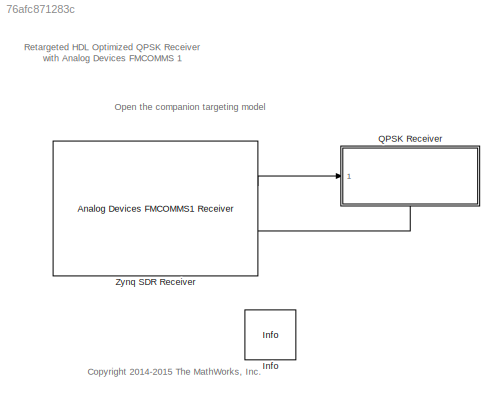
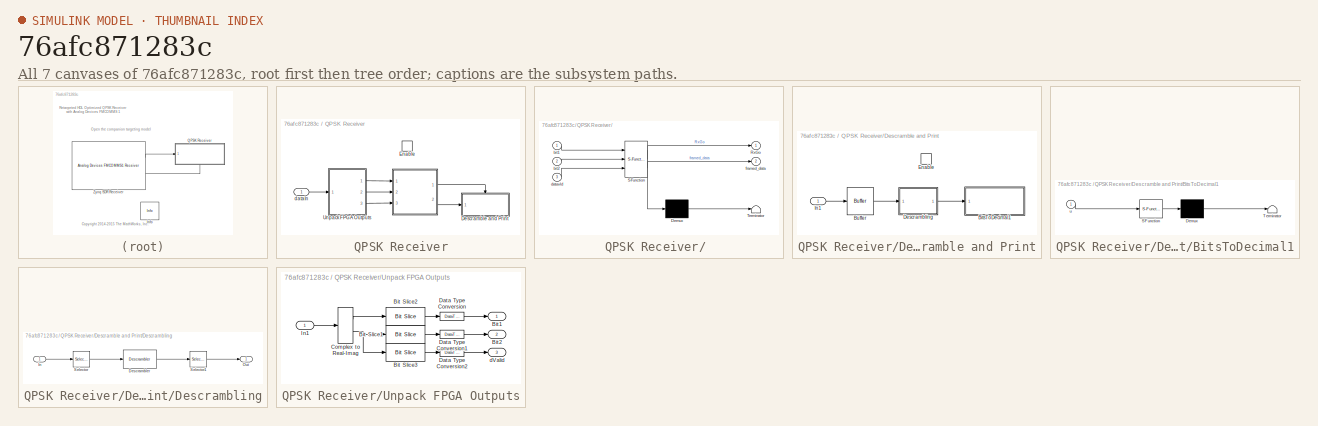
[diagram: thumbnail index - all 7 canvases of the model, root first then tree order]
MODEL slx_76afc871283c
KIND model
CONFIG AbsTol = auto
CONFIG FixedStep = auto
CONFIG InitFcn = sdrzQPSKRxFPGAretarget_params = sdrzQPSKRxFPGA_init;
CONFIG MaxStep = auto
CONFIG MinStep = auto
CONFIG PreLoadFcn = sdrzQPSKRxFPGAretarget_params = sdrzQPSKRxFPGA_init;
CONFIG RelTol = 1e-3
CONFIG SampleTimeConstraint = Unconstrained
CONFIG Solver = FixedStepDiscrete
CONFIG SolverMode = SingleTasking
CONFIG SolverName = FixedStepDiscrete
CONFIG StartTime = 0.0
CONFIG StopTime = inf
BLOCK [Reference] Info  REF=sdrzblksprivate/Info
  Ports = []
  SourceBlock = sdrzblksprivate/Info
  SourceType = Info
BLOCK [SubSystem] QPSK Receiver
  Ports = [1, 0, 1]
  RequestExecContextInheritance = off
  Variant = off
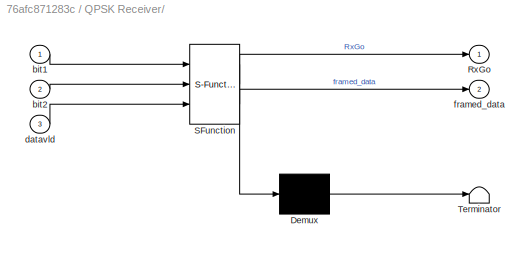
BLOCK [SubSystem] QPSK Receiver/ 
  ErrorFcn = Stateflow.Translate.translate
  PermitHierarchicalResolution = ExplicitOnly
  Ports = [3, 2]
  RequestExecContextInheritance = off
  SFBlockType = MATLAB Function
  TreatAsAtomicUnit = on
  Variant = off
BLOCK [Demux] QPSK Receiver/ / Demux 
  Outputs = 1
  Ports = [1, 1]
BLOCK [S-Function] QPSK Receiver/ / SFunction 
  EnableBusSupport = off
  FunctionName = sf_sfun
  PortCounts = [3 3]
  Ports = [3, 3]
  SFunctionDeploymentMode = off
  Tag = Stateflow S-Function sdrzQPSKRxFPGAretarget 1
BLOCK [Terminator] QPSK Receiver/ / Terminator 
BLOCK [Outport] QPSK Receiver/ /RxGo
  IconDisplay = Port number
BLOCK [Inport] QPSK Receiver/ /bit1
  IconDisplay = Port number
BLOCK [Inport] QPSK Receiver/ /bit2
  IconDisplay = Port number
  Port = 2
BLOCK [Inport] QPSK Receiver/ /datavld
  IconDisplay = Port number
  Port = 3
BLOCK [Outport] QPSK Receiver/ /framed_data
  IconDisplay = Port number
  Port = 2
BLOCK [SubSystem] QPSK Receiver/Descramble and Print
  Ports = [1, 0, 1]
  RequestExecContextInheritance = off
  TreatAsAtomicUnit = on
  Variant = off
BLOCK [SubSystem] QPSK Receiver/Descramble and Print/BitsToDecimal1
  ErrorFcn = Stateflow.Translate.translate
  PermitHierarchicalResolution = ExplicitOnly
  Ports = [1]
  RequestExecContextInheritance = off
  SFBlockType = MATLAB Function
  TreatAsAtomicUnit = on
  Variant = off
BLOCK [Demux] QPSK Receiver/Descramble and Print/BitsToDecimal1/ Demux 
  Outputs = 1
  Ports = [1, 1]
BLOCK [S-Function] QPSK Receiver/Descramble and Print/BitsToDecimal1/ SFunction 
  EnableBusSupport = off
  FunctionName = sf_sfun
  PortCounts = [1 1]
  Ports = [1, 1]
  SFunctionDeploymentMode = off
  Tag = Stateflow S-Function sdrzQPSKRxFPGAretarget 2
BLOCK [Terminator] QPSK Receiver/Descramble and Print/BitsToDecimal1/ Terminator 
BLOCK [Inport] QPSK Receiver/Descramble and Print/BitsToDecimal1/u
  IconDisplay = Port number
BLOCK [Buffer] QPSK Receiver/Descramble and Print/Buffer
  N = 200
  OutputFrames = off
  TreatMby1Signals = One channel
BLOCK [SubSystem] QPSK Receiver/Descramble and Print/Descrambling
  Ports = [1, 1]
  RequestExecContextInheritance = off
  Variant = off
BLOCK [Reference] QPSK Receiver/Descramble and Print/Descrambling/Descrambler  REF=commsequence2/Descrambler
  Ports = [1, 1]
  SourceBlock = commsequence2/Descrambler
  SourceType = Descrambler
BLOCK [Inport] QPSK Receiver/Descramble and Print/Descrambling/In
  IconDisplay = Port number
BLOCK [Outport] QPSK Receiver/Descramble and Print/Descrambling/Out
  IconDisplay = Port number
BLOCK [Selector] QPSK Receiver/Descramble and Print/Descrambling/Selector
  IndexOptions = Index vector (dialog)
  Indices = [sdrzQPSKRxFPGAretarget_params.BarkerLength*log2(sdrzQPSKRxFPGAretarget_params.M)+1:sdrzQPSKRxFPGAretarget_params.FrameSize*log2(sdrzQPSKRxFPGAretarget_params.M)]
  OutputSizes = 1
  Ports = [1, 1]
BLOCK [Selector] QPSK Receiver/Descramble and Print/Descrambling/Selector1
  IndexOptions = Index vector (dialog)
  Indices = [1:sdrzQPSKRxFPGAretarget_params.MsgLength]
  OutputSizes = 1
  Ports = [1, 1]
BLOCK [EnablePort] QPSK Receiver/Descramble and Print/Enable
  Ports = []
BLOCK [Inport] QPSK Receiver/Descramble and Print/In1
  IconDisplay = Port number
BLOCK [EnablePort] QPSK Receiver/Enable
  Ports = []
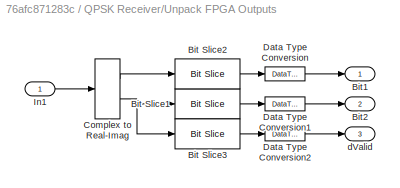
BLOCK [SubSystem] QPSK Receiver/Unpack FPGA Outputs
  Ports = [1, 3]
  RequestExecContextInheritance = off
  Variant = off
BLOCK [Reference] QPSK Receiver/Unpack FPGA Outputs/Bit Slice1  REF=hdlsllib/HDL Operations/Bit Slice
  Ports = [1, 1]
  SourceBlock = hdlsllib/HDL Operations/Bit Slice
  SourceType = Bit Slice
BLOCK [Reference] QPSK Receiver/Unpack FPGA Outputs/Bit Slice2  REF=hdlsllib/HDL Operations/Bit Slice
  Ports = [1, 1]
  SourceBlock = hdlsllib/HDL Operations/Bit Slice
  SourceType = Bit Slice
BLOCK [Reference] QPSK Receiver/Unpack FPGA Outputs/Bit Slice3  REF=hdlsllib/HDL Operations/Bit Slice
  Ports = [1, 1]
  SourceBlock = hdlsllib/HDL Operations/Bit Slice
  SourceType = Bit Slice
BLOCK [Outport] QPSK Receiver/Unpack FPGA Outputs/Bit1
  IconDisplay = Port number
BLOCK [Outport] QPSK Receiver/Unpack FPGA Outputs/Bit2
  IconDisplay = Port number
  Port = 2
BLOCK [ComplexToRealImag] QPSK Receiver/Unpack FPGA Outputs/Complex to Real-Imag
  Ports = [1, 2]
BLOCK [DataTypeConversion] QPSK Receiver/Unpack FPGA Outputs/Data Type Conversion
  OutDataTypeStr = boolean
  RndMeth = Floor
  SaturateOnIntegerOverflow = off
BLOCK [DataTypeConversion] QPSK Receiver/Unpack FPGA Outputs/Data Type Conversion1
  OutDataTypeStr = boolean
  RndMeth = Floor
  SaturateOnIntegerOverflow = off
BLOCK [DataTypeConversion] QPSK Receiver/Unpack FPGA Outputs/Data Type Conversion2
  OutDataTypeStr = boolean
  RndMeth = Floor
  SaturateOnIntegerOverflow = off
BLOCK [Inport] QPSK Receiver/Unpack FPGA Outputs/In1
  IconDisplay = Port number
BLOCK [Outport] QPSK Receiver/Unpack FPGA Outputs/dValid
  IconDisplay = Port number
  Port = 3
BLOCK [Inport] QPSK Receiver/dataIn
  IconDisplay = Port number
  OutDataTypeStr = int16
BLOCK [Reference] Zynq SDR Receiver  REF=sdrzlib/Analog Devices
FMCOMMS1 Receiver
  Ports = [0, 2]
  SourceBlock = sdrzlib/Analog Devices\nFMCOMMS1 Receiver
  SourceLibraryInfo = This block requires Communications System Toolbox Support Package for Xilinx FPGA-Based Radio. <a href="http://www.mathworks.com/hardware-support-packages">More information</a>
  SourceType = Zynq-Based Analog Devices FMCOMMS1 Receiver
ANNOTATION (root): <copyright redacted>
ANNOTATION (root): Open the companion targeting model
ANNOTATION (root): Retargeted HDL Optimized QPSK Receiver with Analog Devices FMCOMMS 1
LINE QPSK Receiver/ :1 -> QPSK Receiver/Descramble and Print:enable
LINE QPSK Receiver/ :2 -> QPSK Receiver/Descramble and Print:1
LINE QPSK Receiver/Descramble and Print/Buffer:1 -> QPSK Receiver/Descramble and Print/Descrambling:1
LINE QPSK Receiver/Descramble and Print/Descrambling/Descrambler:1 -> QPSK Receiver/Descramble and Print/Descrambling/Selector1:1
LINE QPSK Receiver/Descramble and Print/Descrambling/In:1 -> QPSK Receiver/Descramble and Print/Descrambling/Selector:1
LINE QPSK Receiver/Descramble and Print/Descrambling/Selector1:1 -> QPSK Receiver/Descramble and Print/Descrambling/Out:1
LINE QPSK Receiver/Descramble and Print/Descrambling/Selector:1 -> QPSK Receiver/Descramble and Print/Descrambling/Descrambler:1
LINE QPSK Receiver/Descramble and Print/Descrambling:1 -> QPSK Receiver/Descramble and Print/BitsToDecimal1:1
LINE QPSK Receiver/Descramble and Print/In1:1 -> QPSK Receiver/Descramble and Print/Buffer:1
LINE QPSK Receiver/Unpack FPGA Outputs/Bit Slice1:1 -> QPSK Receiver/Unpack FPGA Outputs/Data Type Conversion1:1
LINE QPSK Receiver/Unpack FPGA Outputs/Bit Slice2:1 -> QPSK Receiver/Unpack FPGA Outputs/Data Type Conversion:1
LINE QPSK Receiver/Unpack FPGA Outputs/Bit Slice3:1 -> QPSK Receiver/Unpack FPGA Outputs/Data Type Conversion2:1
LINE QPSK Receiver/Unpack FPGA Outputs/Complex to Real-Imag:1 -> QPSK Receiver/Unpack FPGA Outputs/Bit Slice2:1
NET QPSK Receiver/Unpack FPGA Outputs/Complex to Real-Imag:2 -> QPSK Receiver/Unpack FPGA Outputs/Bit Slice1:1, QPSK Receiver/Unpack FPGA Outputs/Bit Slice3:1
LINE QPSK Receiver/Unpack FPGA Outputs/Data Type Conversion1:1 -> QPSK Receiver/Unpack FPGA Outputs/Bit2:1
LINE QPSK Receiver/Unpack FPGA Outputs/Data Type Conversion2:1 -> QPSK Receiver/Unpack FPGA Outputs/dValid:1
LINE QPSK Receiver/Unpack FPGA Outputs/Data Type Conversion:1 -> QPSK Receiver/Unpack FPGA Outputs/Bit1:1
LINE QPSK Receiver/Unpack FPGA Outputs/In1:1 -> QPSK Receiver/Unpack FPGA Outputs/Complex to Real-Imag:1
LINE QPSK Receiver/Unpack FPGA Outputs:1 -> QPSK Receiver/ :1
LINE QPSK Receiver/Unpack FPGA Outputs:2 -> QPSK Receiver/ :2
LINE QPSK Receiver/Unpack FPGA Outputs:3 -> QPSK Receiver/ :3
LINE QPSK Receiver/dataIn:1 -> QPSK Receiver/Unpack FPGA Outputs:1
LINE Zynq SDR Receiver:1 -> QPSK Receiver:1
LINE Zynq SDR Receiver:2 -> QPSK Receiver:enable
note: NET lines group one-source signal fan-out (src -> all destinations, sorted); 1:1 wires keep LINE
CHART QPSK Receiver/  states=1 transitions=1
  STATE_LABEL 'eML_blk_kernel()'
  STATE_LABEL 'SCRIPT:\nfunction [RxGo, framed_data] = dataframer(bit1, bit2, datavld)\n%#codegen\n\npersistent  gooddata_from_prev length_prev_good_data\n\n\nif isempty(gooddata_from_prev)\n    gooddata_from_prev = false(8000,1);\n    length_prev_good_data = 0;\nend\n\ngooddata_current = false(8000,1); % worst case scenario\nif any(datavld) % there is some valid data\n    % get the valid data from this frame and append it wi...<+1403ch>'
CHART QPSK Receiver/Descramble and Print/BitsToDecimal1 states=1 transitions=1
  STATE_LABEL 'eML_blk_kernel()'
  STATE_LABEL "SCRIPT:\nfunction BitsToASCII(u)\n% Convert bits to ASCII message.\n\npersistent package_counter;\npersistent error_counter;\nif isempty(package_counter)\n    package_counter = 0;\n    error_counter   = 0;\nend\n\ncoder.extrinsic('disp')\ncoder.extrinsic('num2str')\n\naa = de2bi(int8('Hello world 0'),7,'left-msb');\nbits_ref = double(reshape(aa.',1,[]));\nbits_ref = bits_ref(:);\n\nerror_counter   = error_counter  ...<+339ch>"
